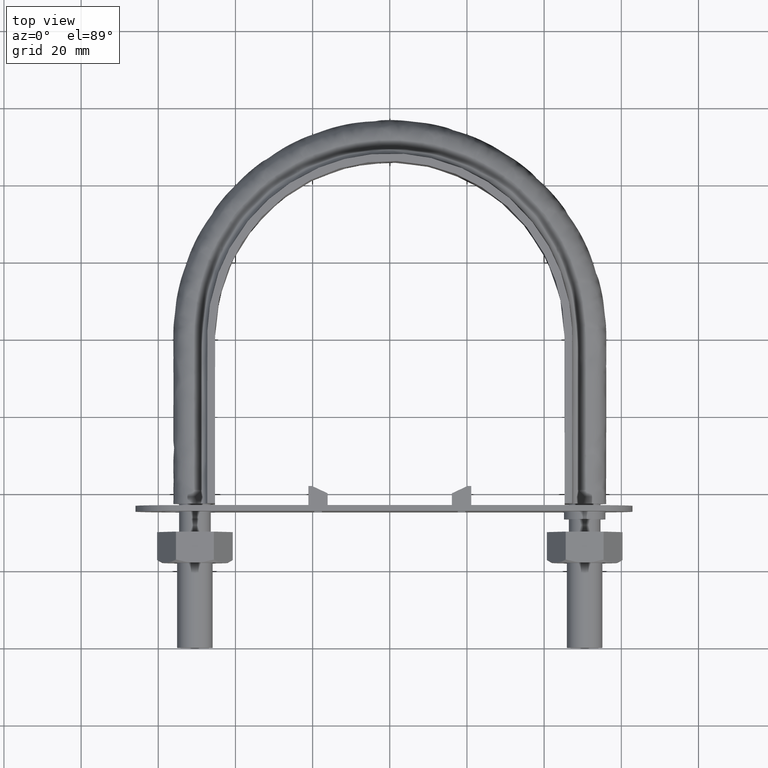
[diagram: clean part render]
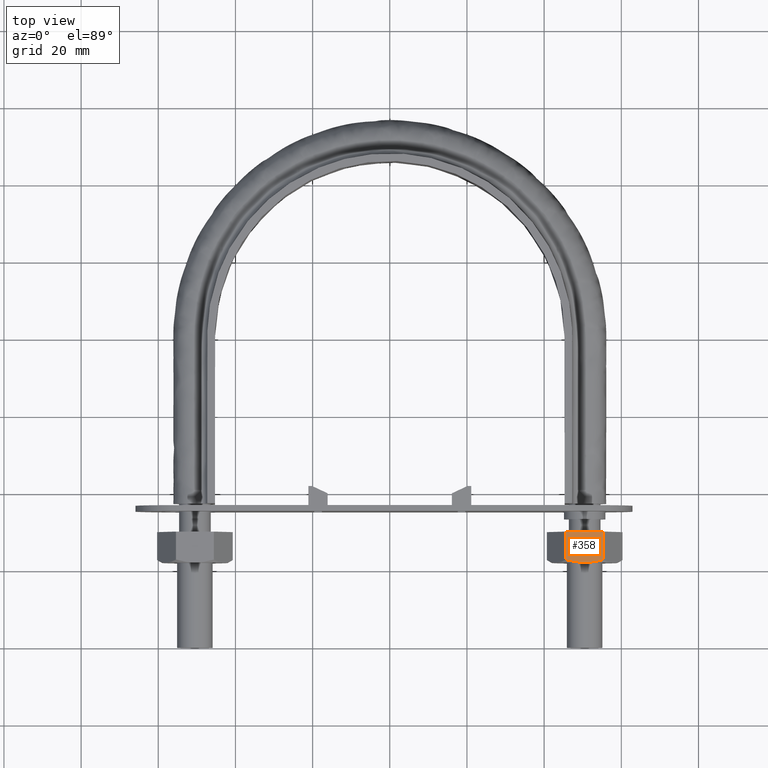
[diagram: same view with one face highlighted and labeled with its STEP entity id]
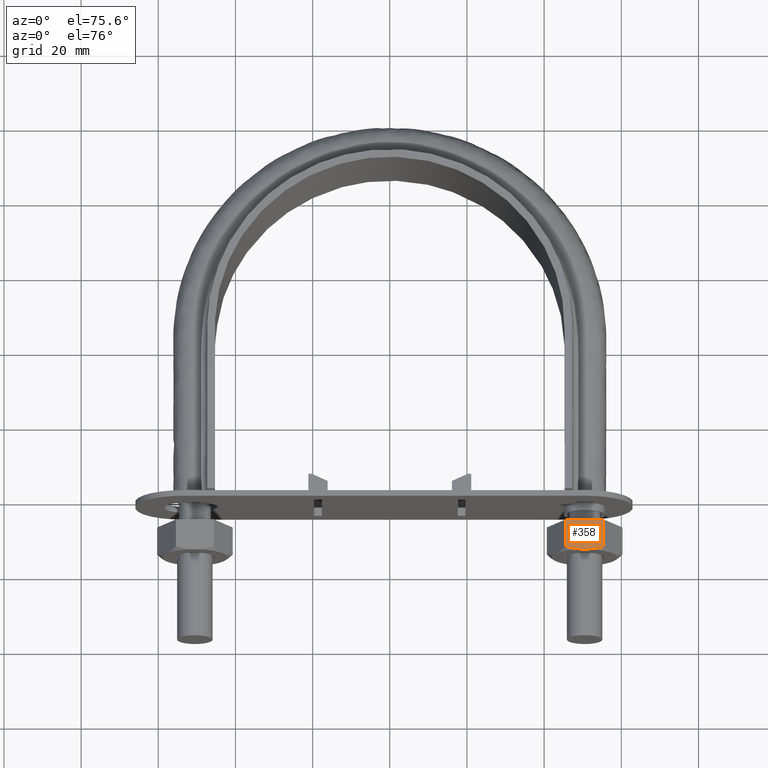
[diagram: same view with one face highlighted and labeled with its STEP entity id]
A machine part, top view. The second image highlights one B-rep face of the part: STEP entity #358.
A second angle (auxiliary view) of the same face is appended — the face is thin or edge-on in the first view.
In plain terms, the highlighted planar face has unit normal (-0, 0, -1).
Its self-contained STEP definition (entity closure, byte-faithful):
#358 = ADVANCED_FACE( '', ( #588 ), #589, .F. );
#588 = FACE_OUTER_BOUND( '', #1655, .T. );
#589 = PLANE( '', #1656 );
#1655 = EDGE_LOOP( '', ( #2351, #2352, #2353, #2354, #2355 ) );
#1656 = AXIS2_PLACEMENT_3D( '', #2356, #2357, #2358 );
#2351 = ORIENTED_EDGE( '', *, *, #2697, .F. );
#2352 = ORIENTED_EDGE( '', *, *, #2698, .F. );
#2353 = ORIENTED_EDGE( '', *, *, #2696, .F. );
#2354 = ORIENTED_EDGE( '', *, *, #2699, .F. );
#2355 = ORIENTED_EDGE( '', *, *, #2700, .F. );
#2356 = CARTESIAN_POINT( '', ( 45.5925227123877, 30.0000000000000, 8.50000000028695 ) );
#2357 = DIRECTION( '', ( -5.87450643685378E-011, 6.12303177055068E-017, -1.00000000000000 ) );
#2358 = DIRECTION( '', ( -1.00000000000000, 0.000000000000000, 5.87450643685378E-011 ) );
#2696 = EDGE_CURVE( '', #3058, #3053, #3060, .T. );
#2697 = EDGE_CURVE( '', #3061, #3062, #3063, .T. );
#2698 = EDGE_CURVE( '', #3053, #3061, #3064, .T. );
#2699 = EDGE_CURVE( '', #3065, #3058, #3066, .T. );
#2700 = EDGE_CURVE( '', #3062, #3065, #3067, .F. );
#3053 = VERTEX_POINT( '', #3853 );
#3058 = VERTEX_POINT( '', #3859 );
#3060 = LINE( '', #3861, #3862 );
#3061 = VERTEX_POINT( '', #3863 );
#3062 = VERTEX_POINT( '', #3864 );
#3063 = B_SPLINE_CURVE_WITH_KNOTS( '', 3, ( #3865, #3866, #3867, #3868, #3869, #3870 ), .UNSPECIFIED., .F., .F., ( 4, 2, 4 ), ( 5.64785044985378E-017, 0.00246745482903668, 0.00493490965807329 ), .UNSPECIFIED. );
#3064 = B_SPLINE_CURVE_WITH_KNOTS( '', 3, ( #3871, #3872, #3873, #3874, #3875, #3876 ), .UNSPECIFIED., .F., .F., ( 4, 2, 4 ), ( 1.17961196366423E-015, 0.00246745482903666, 0.00493490965807215 ), .UNSPECIFIED. );
#3065 = VERTEX_POINT( '', #3877 );
#3066 = LINE( '', #3878, #3879 );
#3067 = LINE( '', #3880, #3881 );
#3853 = CARTESIAN_POINT( '', ( 55.3774993598034, 22.7505553499472, 8.49999999971213 ) );
#3859 = CARTESIAN_POINT( '', ( 55.3774993598046, 30.0000000000000, 8.49999999971213 ) );
#3861 = CARTESIAN_POINT( '', ( 55.3774993598046, 30.0000000000000, 8.49999999971213 ) );
#3862 = VECTOR( '', #4270, 1000.00000000000 );
#3863 = CARTESIAN_POINT( '', ( 50.5000000004993, 22.0000000000006, 8.49999999999933 ) );
#3864 = CARTESIAN_POINT( '', ( 45.6225006411953, 22.7505553499472, 8.50000000028519 ) );
#3865 = CARTESIAN_POINT( '', ( 50.5000000004993, 22.0000000000002, 8.49999999999866 ) );
#3866 = CARTESIAN_POINT( '', ( 49.6678340503084, 22.0000000000002, 8.50000000004755 ) );
#3867 = CARTESIAN_POINT( '', ( 48.8466937528132, 22.0716504305293, 8.50000000009578 ) );
#3868 = CARTESIAN_POINT( '', ( 47.2225568248357, 22.3328582843711, 8.50000000019119 ) );
#3869 = CARTESIAN_POINT( '', ( 46.4194282938223, 22.5215585493659, 8.50000000023837 ) );
#3870 = CARTESIAN_POINT( '', ( 45.6225006411964, 22.7505553499468, 8.50000000028519 ) );
#3871 = CARTESIAN_POINT( '', ( 55.3774993598023, 22.7505553499468, 8.49999999971213 ) );
#3872 = CARTESIAN_POINT( '', ( 54.5805717071768, 22.5215585493660, 8.49999999975895 ) );
#3873 = CARTESIAN_POINT( '', ( 53.7774431761615, 22.3328582843708, 8.49999999980613 ) );
#3874 = CARTESIAN_POINT( '', ( 52.1533062481846, 22.0716504305292, 8.49999999990154 ) );
#3875 = CARTESIAN_POINT( '', ( 51.3321659506898, 22.0000000000002, 8.49999999994977 ) );
#3876 = CARTESIAN_POINT( '', ( 50.5000000004993, 22.0000000000002, 8.49999999999866 ) );
#3877 = CARTESIAN_POINT( '', ( 45.6225006411941, 30.0000000000000, 8.50000000028519 ) );
#3878 = CARTESIAN_POINT( '', ( 55.4000000004992, 30.0000000000000, 8.49999999971081 ) );
#3879 = VECTOR( '', #4271, 1000.00000000000 );
#3880 = CARTESIAN_POINT( '', ( 45.6225006411941, 30.0000000000000, 8.50000000028519 ) );
#3881 = VECTOR( '', #4272, 1000.00000000000 );
#4270 = DIRECTION( '', ( -2.44921270764475E-016, -1.00000000000000, -6.12303176911185E-017 ) );
#4271 = DIRECTION( '', ( 1.00000000000000, -2.44921270760878E-016, -5.87450643685378E-011 ) );
#4272 = DIRECTION( '', ( -2.44921270764475E-016, -1.00000000000000, -6.12303176911185E-017 ) );